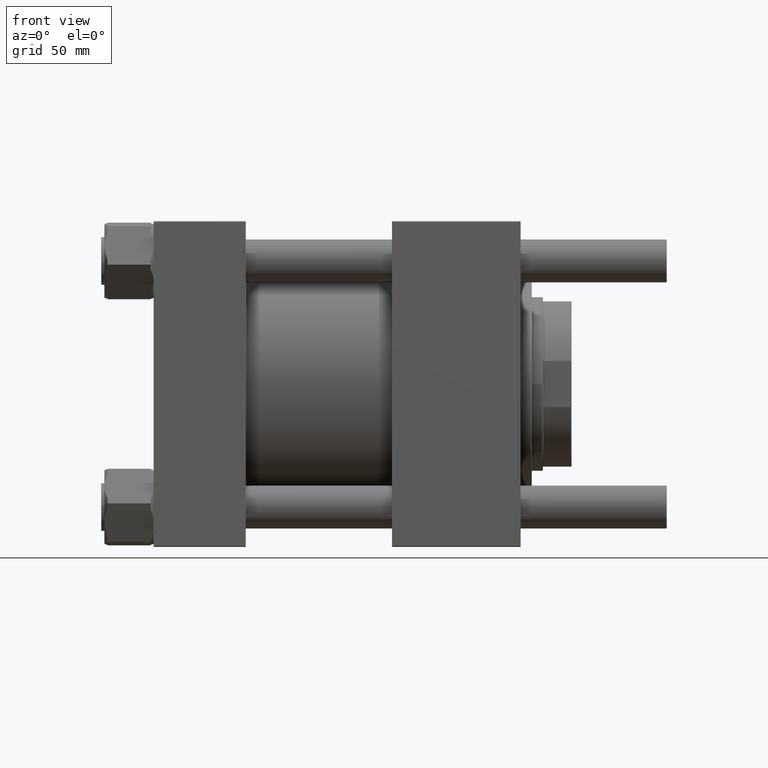
[diagram: clean part render]
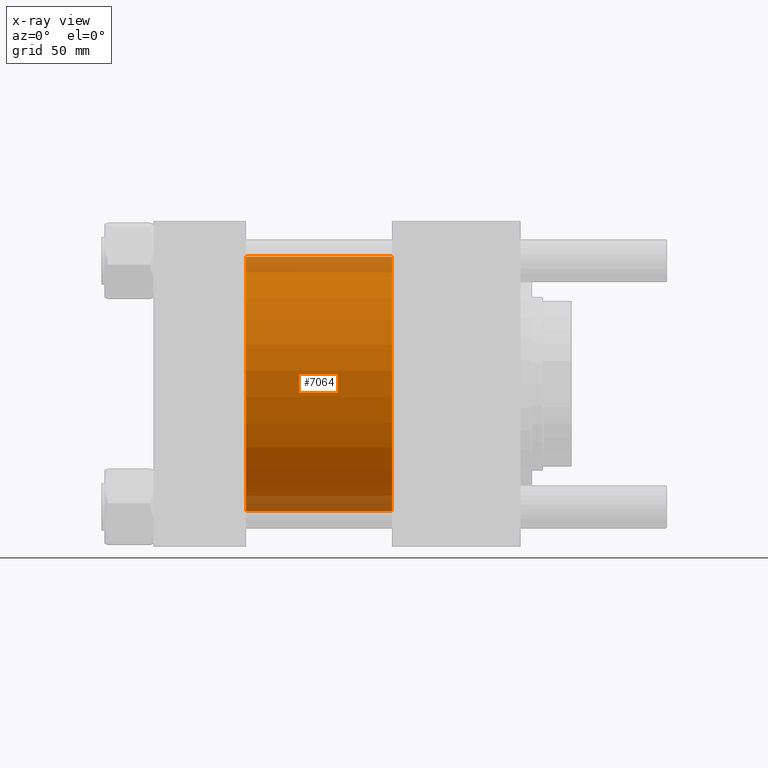
[diagram: x-ray — body ghosted, one internal face saturated and labeled with its STEP entity id]
A machine part, front view, then the same camera in x-ray: the body is ghosted and one INTERNAL B-rep face — a face not visible from any outside direction — is saturated and labeled: STEP entity #7064.
In plain terms, the highlighted cylindrical surface (partial cylindrical patch) has radius 80 mm, axis along (-1, -0, -0).
Its self-contained STEP definition (entity closure, byte-faithful):
#142 = FACE_OUTER_BOUND ( 'NONE', #9698, .T. ) ;
#2484 = CARTESIAN_POINT ( 'NONE',  ( 150.0000000000000000, 7.195089179213615410E-15, -80.00000000000000000 ) ) ;
#3921 = VERTEX_POINT ( 'NONE', #39425 ) ;
#4221 = DIRECTION ( 'NONE',  ( -1.000000000000000000, -0.000000000000000000, -0.000000000000000000 ) ) ;
#5695 = DIRECTION ( 'NONE',  ( 1.000000000000000000, 0.000000000000000000, 0.000000000000000000 ) ) ;
#6895 = CARTESIAN_POINT ( 'NONE',  ( 58.00000000000000000, -2.602085213965210642E-15, 80.00000000000000000 ) ) ;
#7064 = ADVANCED_FACE ( 'NONE', ( #142 ), #26016, .F. ) ;
#7429 = DIRECTION ( 'NONE',  ( -1.000000000000000000, -0.000000000000000000, -0.000000000000000000 ) ) ;
#8090 = CIRCLE ( 'NONE', #53436, 80.00000000000000000 ) ;
#8601 = CARTESIAN_POINT ( 'NONE',  ( 150.0000000000000000, -2.602085213965210642E-15, 0.000000000000000000 ) ) ;
#9698 = EDGE_LOOP ( 'NONE', ( #29219, #56166, #56246, #55112 ) ) ;
#11230 = AXIS2_PLACEMENT_3D ( 'NONE', #8601, #4221, #39641 ) ;
#13517 = AXIS2_PLACEMENT_3D ( 'NONE', #38359, #38066, #33730 ) ;
#14142 = CARTESIAN_POINT ( 'NONE',  ( 58.00000000000000000, -2.602085213965210642E-15, 0.000000000000000000 ) ) ;
#16360 = DIRECTION ( 'NONE',  ( -1.000000000000000000, -0.000000000000000000, -0.000000000000000000 ) ) ;
#22842 = DIRECTION ( 'NONE',  ( 0.000000000000000000, 0.000000000000000000, -1.000000000000000000 ) ) ;
#26016 = CYLINDRICAL_SURFACE ( 'NONE', #11230, 80.00000000000000000 ) ;
#26267 = EDGE_CURVE ( 'NONE', #42955, #3921, #42210, .T. ) ;
#29219 = ORIENTED_EDGE ( 'NONE', *, *, #26267, .T. ) ;
#29721 = EDGE_CURVE ( 'NONE', #32518, #39997, #8090, .T. ) ;
#32518 = VERTEX_POINT ( 'NONE', #6895 ) ;
#32605 = VECTOR ( 'NONE', #16360, 1000.000000000000000 ) ;
#33730 = DIRECTION ( 'NONE',  ( 0.000000000000000000, 0.000000000000000000, -1.000000000000000000 ) ) ;
#34064 = LINE ( 'NONE', #51713, #32605 ) ;
#38066 = DIRECTION ( 'NONE',  ( 1.000000000000000000, 0.000000000000000000, 0.000000000000000000 ) ) ;
#38359 = CARTESIAN_POINT ( 'NONE',  ( 150.0000000000000000, -2.602085213965210642E-15, 0.000000000000000000 ) ) ;
#39425 = CARTESIAN_POINT ( 'NONE',  ( 150.0000000000000000, 7.195089179213615410E-15, -80.00000000000000000 ) ) ;
#39641 = DIRECTION ( 'NONE',  ( 0.000000000000000000, 0.000000000000000000, 1.000000000000000000 ) ) ;
#39997 = VERTEX_POINT ( 'NONE', #52955 ) ;
#42210 = CIRCLE ( 'NONE', #13517, 80.00000000000000000 ) ;
#42803 = EDGE_CURVE ( 'NONE', #3921, #39997, #56159, .T. ) ;
#42955 = VERTEX_POINT ( 'NONE', #49748 ) ;
#43068 = EDGE_CURVE ( 'NONE', #42955, #32518, #34064, .T. ) ;
#49748 = CARTESIAN_POINT ( 'NONE',  ( 150.0000000000000000, -2.602085213965210642E-15, 80.00000000000000000 ) ) ;
#51123 = VECTOR ( 'NONE', #7429, 1000.000000000000000 ) ;
#51713 = CARTESIAN_POINT ( 'NONE',  ( 150.0000000000000000, -2.602085213965210642E-15, 80.00000000000000000 ) ) ;
#52955 = CARTESIAN_POINT ( 'NONE',  ( 58.00000000000000000, 7.195089179213615410E-15, -80.00000000000000000 ) ) ;
#53436 = AXIS2_PLACEMENT_3D ( 'NONE', #14142, #5695, #22842 ) ;
#55112 = ORIENTED_EDGE ( 'NONE', *, *, #43068, .F. ) ;
#56159 = LINE ( 'NONE', #2484, #51123 ) ;
#56166 = ORIENTED_EDGE ( 'NONE', *, *, #42803, .T. ) ;
#56246 = ORIENTED_EDGE ( 'NONE', *, *, #29721, .F. ) ;